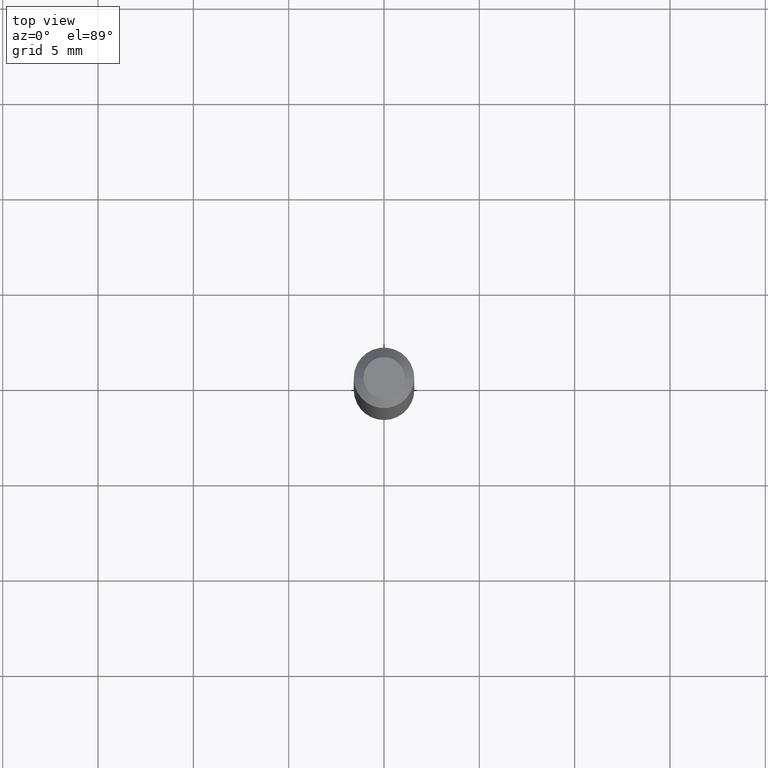
[diagram: clean part render]
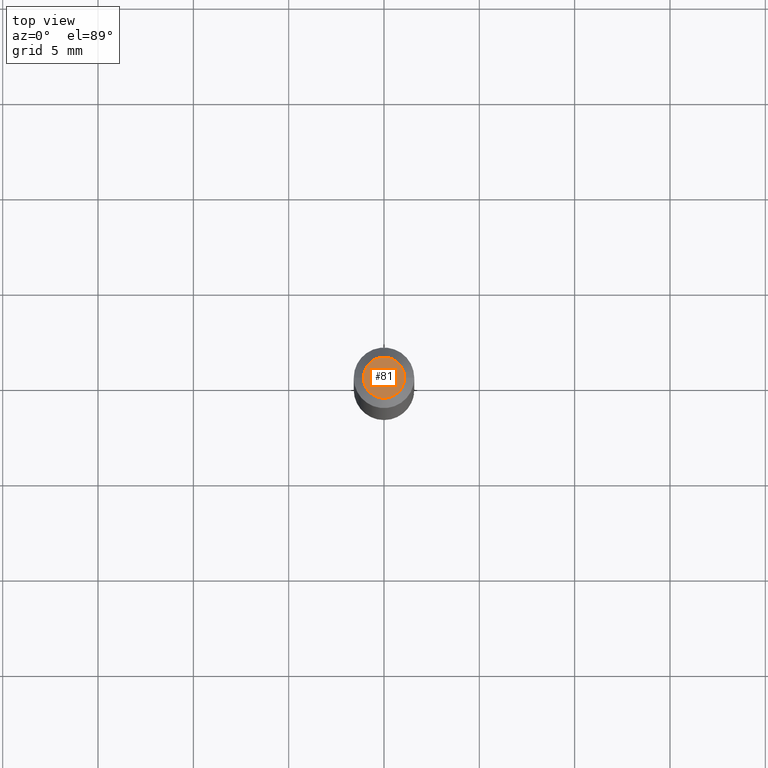
[diagram: same view with one face highlighted and labeled with its STEP entity id]
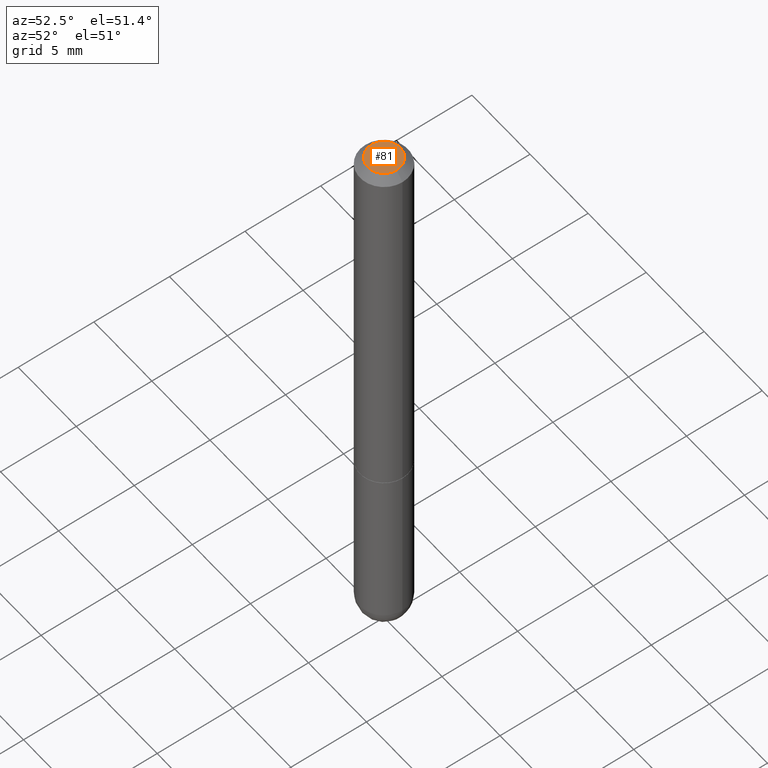
[diagram: same view with one face highlighted and labeled with its STEP entity id]
A machine part, top view. The second image highlights one B-rep face of the part: STEP entity #81.
A second angle (auxiliary view) of the same face is appended — the face is thin or edge-on in the first view.
In plain terms, the highlighted planar face has unit normal (0, -0, -1).
Its self-contained STEP definition (entity closure, byte-faithful):
#22 = CARTESIAN_POINT ( 'NONE',  ( -5.949953061710752563E-45, 8.494956071168549013E-31, 2.433052119357234336E-16 ) ) ;
#49 = DIRECTION ( 'NONE',  ( 1.000000000000000000, -6.982962677686265922E-15, 4.852736867747402641E-29 ) ) ;
#53 = FACE_OUTER_BOUND ( 'NONE', #68, .T. ) ;
#68 = EDGE_LOOP ( 'NONE', ( #328, #224 ) ) ;
#81 = ADVANCED_FACE ( 'NONE', ( #53 ), #129, .F. ) ;
#129 = PLANE ( 'NONE',  #147 ) ;
#135 = CARTESIAN_POINT ( 'NONE',  ( -0.04249999999999968386, 3.316907271900965742E-16, 2.433052119357212643E-16 ) ) ;
#147 = AXIS2_PLACEMENT_3D ( 'NONE', #333, #243, #248 ) ;
#159 = EDGE_CURVE ( 'NONE', #289, #264, #206, .T. ) ;
#197 = EDGE_CURVE ( 'NONE', #264, #289, #331, .T. ) ;
#206 = CIRCLE ( 'NONE', #341, 0.04249999999999968386 ) ;
#217 = DIRECTION ( 'NONE',  ( -2.445468806185136597E-29, 3.491481338843145583E-15, 1.000000000000000000 ) ) ;
#224 = ORIENTED_EDGE ( 'NONE', *, *, #159, .T. ) ;
#243 = DIRECTION ( 'NONE',  ( 2.438088387897960049E-29, -3.491481338843145188E-15, -1.000000000000000000 ) ) ;
#248 = DIRECTION ( 'NONE',  ( -1.000000000000000000, 6.982962677686265922E-15, -4.876176775795935793E-29 ) ) ;
#264 = VERTEX_POINT ( 'NONE', #135 ) ;
#289 = VERTEX_POINT ( 'NONE', #357 ) ;
#315 = DIRECTION ( 'NONE',  ( 1.000000000000000000, -6.982962677686265922E-15, 4.852736867747402641E-29 ) ) ;
#328 = ORIENTED_EDGE ( 'NONE', *, *, #197, .T. ) ;
#331 = CIRCLE ( 'NONE', #376, 0.04249999999999968386 ) ;
#333 = CARTESIAN_POINT ( 'NONE',  ( 2.967759138016640869E-16, 0.04249999999999968386, -2.673535093297085050E-17 ) ) ;
#341 = AXIS2_PLACEMENT_3D ( 'NONE', #22, #405, #49 ) ;
#357 = CARTESIAN_POINT ( 'NONE',  ( 0.04249999999999968386, -3.950909582714352654E-16, 2.433052119357258495E-16 ) ) ;
#374 = CARTESIAN_POINT ( 'NONE',  ( -5.949953061710752563E-45, 8.494956071168549013E-31, 2.433052119357234336E-16 ) ) ;
#376 = AXIS2_PLACEMENT_3D ( 'NONE', #374, #217, #315 ) ;
#405 = DIRECTION ( 'NONE',  ( -2.445468806185136597E-29, 3.491481338843145583E-15, 1.000000000000000000 ) ) ;